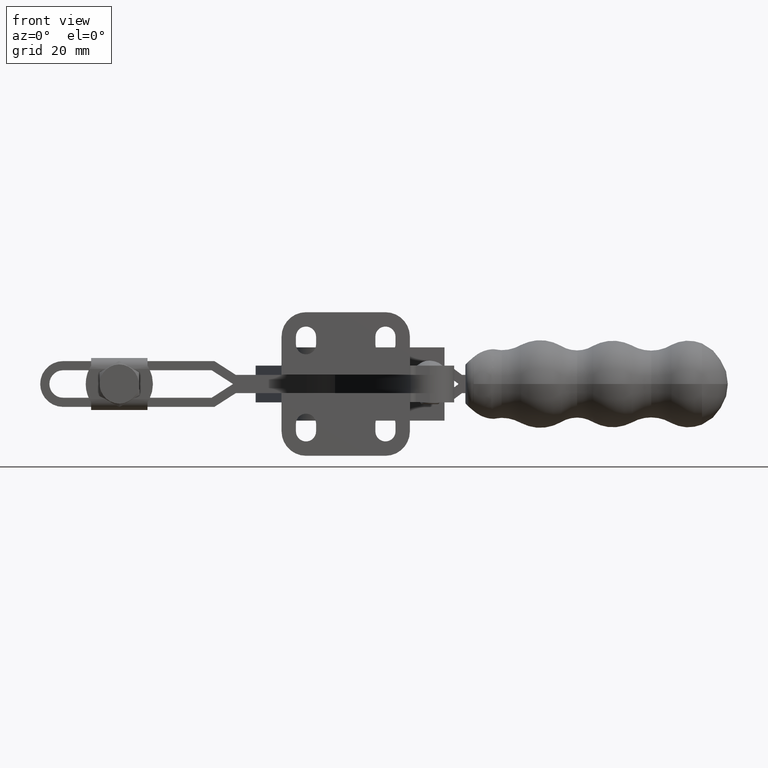
[diagram: clean part render]
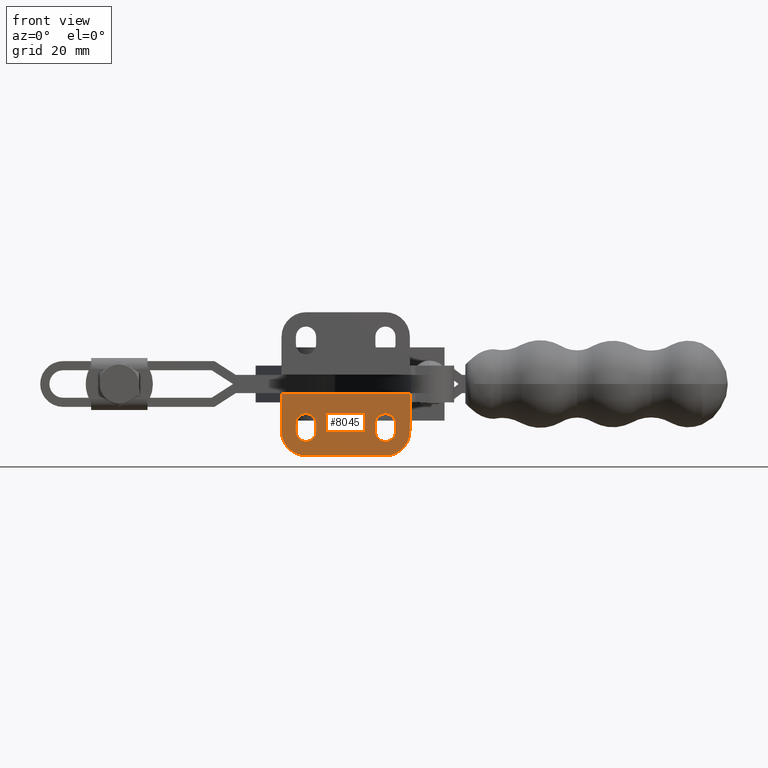
[diagram: same view with one face highlighted and labeled with its STEP entity id]
A machine part, front view. The second image highlights one B-rep face of the part: STEP entity #8045.
In plain terms, the highlighted planar face has unit normal (-0, 1, -0).
Its self-contained STEP definition (entity closure, byte-faithful):
#99 = ORIENTED_EDGE ( 'NONE', *, *, #2182, .F. ) ;
#127 = CARTESIAN_POINT ( 'NONE',  ( -32.15176316209051100, 0.2499999999999925300, -26.50100000000073000 ) ) ;
#229 = CARTESIAN_POINT ( 'NONE',  ( -25.79999999999986200, 0.2499999999999940900, -18.50100000000068300 ) ) ;
#244 = CARTESIAN_POINT ( 'NONE',  ( -51.79999999999988300, 0.2499999999999941400, -18.50100000000084700 ) ) ;
#337 = DIRECTION ( 'NONE',  ( 6.779171240880906000E-016, 1.979755029799889600E-016, 1.000000000000000000 ) ) ;
#344 = ORIENTED_EDGE ( 'NONE', *, *, #11737, .F. ) ;
#394 = FACE_BOUND ( 'NONE', #5056, .T. ) ;
#659 = CIRCLE ( 'NONE', #7319, 8.000000000000007100 ) ;
#681 = VECTOR ( 'NONE', #8382, 1000.000000000000000 ) ;
#716 = CARTESIAN_POINT ( 'NONE',  ( -56.50000000000025600, 0.2499999999999965900, -6.001000000000471100 ) ) ;
#734 = CIRCLE ( 'NONE', #3886, 3.299999999999969600 ) ;
#1039 = AXIS2_PLACEMENT_3D ( 'NONE', #7033, #1291, #7971 ) ;
#1062 = VECTOR ( 'NONE', #5654, 1000.000000000000000 ) ;
#1101 = VERTEX_POINT ( 'NONE', #3378 ) ;
#1103 = DIRECTION ( 'NONE',  ( -1.000000000000000000, -1.306625518940767900E-030, -6.260976779819133100E-015 ) ) ;
#1291 = DIRECTION ( 'NONE',  ( 6.710549181004365900E-032, -1.000000000000000000, 1.979755029799889600E-016 ) ) ;
#1304 = AXIS2_PLACEMENT_3D ( 'NONE', #9973, #4266, #10951 ) ;
#1319 = VERTEX_POINT ( 'NONE', #1909 ) ;
#1454 = CIRCLE ( 'NONE', #3261, 3.299999999999969600 ) ;
#1475 = EDGE_CURVE ( 'NONE', #12215, #4117, #12260, .T. ) ;
#1700 = ORIENTED_EDGE ( 'NONE', *, *, #4121, .T. ) ;
#1757 = EDGE_CURVE ( 'NONE', #5619, #3604, #8626, .T. ) ;
#1887 = CARTESIAN_POINT ( 'NONE',  ( -22.49999999999984400, 0.2499999999999925300, -26.50100000000066900 ) ) ;
#1909 = CARTESIAN_POINT ( 'NONE',  ( -14.50000000000026100, 0.2499999999999965900, -6.001000000000499500 ) ) ;
#2109 = VERTEX_POINT ( 'NONE', #7020 ) ;
#2123 = ORIENTED_EDGE ( 'NONE', *, *, #9016, .T. ) ;
#2182 = EDGE_CURVE ( 'NONE', #12028, #6574, #6685, .T. ) ;
#2223 = CARTESIAN_POINT ( 'NONE',  ( -48.49999999999991500, 0.2499999999999940900, -18.50100000000082200 ) ) ;
#2280 = CARTESIAN_POINT ( 'NONE',  ( -14.50000000000026300, 0.2499999999999960000, -9.001000000000500400 ) ) ;
#2424 = ORIENTED_EDGE ( 'NONE', *, *, #1475, .T. ) ;
#2540 = DIRECTION ( 'NONE',  ( 6.710549181004365900E-032, -1.000000000000000000, 1.979755029799889600E-016 ) ) ;
#2543 = LINE ( 'NONE', #3707, #9862 ) ;
#2768 = CARTESIAN_POINT ( 'NONE',  ( -48.49999999999992200, 0.2499999999999945900, -16.00100000000082500 ) ) ;
#2942 = FACE_BOUND ( 'NONE', #8881, .T. ) ;
#3171 = DIRECTION ( 'NONE',  ( -8.673617379884027600E-016, -1.965116437629975100E-016, -1.000000000000000000 ) ) ;
#3246 = PLANE ( 'NONE',  #12322 ) ;
#3261 = AXIS2_PLACEMENT_3D ( 'NONE', #8114, #2540, #9243 ) ;
#3378 = CARTESIAN_POINT ( 'NONE',  ( -45.19999999999995300, 0.2499999999999945900, -16.00100000000080100 ) ) ;
#3412 = CARTESIAN_POINT ( 'NONE',  ( -19.19999999999986800, 0.2499999999999945900, -16.00100000000064100 ) ) ;
#3589 = LINE ( 'NONE', #127, #3888 ) ;
#3604 = VERTEX_POINT ( 'NONE', #3412 ) ;
#3707 = CARTESIAN_POINT ( 'NONE',  ( -45.20000000000016600, 0.2500000000000029400, 25.98898237602105300 ) ) ;
#3741 = DIRECTION ( 'NONE',  ( 0.0000000000000000000, -1.971276677246389800E-016, -1.000000000000000000 ) ) ;
#3743 = CARTESIAN_POINT ( 'NONE',  ( -56.50000000000025600, 0.2499999999999960000, -9.001000000000470200 ) ) ;
#3886 = AXIS2_PLACEMENT_3D ( 'NONE', #2768, #9460, #3741 ) ;
#3888 = VECTOR ( 'NONE', #1103, 1000.000000000000000 ) ;
#4028 = VECTOR ( 'NONE', #337, 1000.000000000000000 ) ;
#4117 = VERTEX_POINT ( 'NONE', #5132 ) ;
#4121 = EDGE_CURVE ( 'NONE', #4117, #1319, #4331, .T. ) ;
#4266 = DIRECTION ( 'NONE',  ( 6.710549181004365900E-032, -1.000000000000000000, 1.979755029799889600E-016 ) ) ;
#4267 = EDGE_CURVE ( 'NONE', #1101, #12028, #734, .T. ) ;
#4331 = LINE ( 'NONE', #2280, #4028 ) ;
#4666 = DIRECTION ( 'NONE',  ( -4.873197999037687500E-015, 1.979755029799889600E-016, 1.000000000000000000 ) ) ;
#4825 = VERTEX_POINT ( 'NONE', #716 ) ;
#4888 = CARTESIAN_POINT ( 'NONE',  ( -45.19999999999993900, 0.2499999999999940900, -18.50100000000080100 ) ) ;
#5020 = DIRECTION ( 'NONE',  ( 6.710549181004365900E-032, -1.000000000000000000, 1.979755029799889600E-016 ) ) ;
#5025 = CARTESIAN_POINT ( 'NONE',  ( -19.19999999999992100, 0.2499999999999940900, -18.50100000000064100 ) ) ;
#5046 = DIRECTION ( 'NONE',  ( -6.779171240880906000E-016, -1.979755029799889600E-016, -1.000000000000000000 ) ) ;
#5056 = EDGE_LOOP ( 'NONE', ( #10211, #8180, #7371, #11572 ) ) ;
#5066 = VERTEX_POINT ( 'NONE', #229 ) ;
#5132 = CARTESIAN_POINT ( 'NONE',  ( -14.49999999999988500, 0.2499999999999940900, -18.50100000000060900 ) ) ;
#5187 = DIRECTION ( 'NONE',  ( -6.710549181004365900E-032, 1.000000000000000000, -1.979755029799889600E-016 ) ) ;
#5199 = ORIENTED_EDGE ( 'NONE', *, *, #8296, .T. ) ;
#5619 = VERTEX_POINT ( 'NONE', #5025 ) ;
#5654 = DIRECTION ( 'NONE',  ( -1.000000000000000000, 6.710549181004365900E-032, 6.779171240880906000E-016 ) ) ;
#5786 = EDGE_CURVE ( 'NONE', #5066, #5619, #1454, .T. ) ;
#6047 = VERTEX_POINT ( 'NONE', #4888 ) ;
#6161 = EDGE_LOOP ( 'NONE', ( #6182, #5199, #2123, #344, #2424, #1700 ) ) ;
#6182 = ORIENTED_EDGE ( 'NONE', *, *, #11055, .T. ) ;
#6387 = EDGE_CURVE ( 'NONE', #6047, #1101, #2543, .T. ) ;
#6571 = AXIS2_PLACEMENT_3D ( 'NONE', #10722, #5020, #11695 ) ;
#6574 = VERTEX_POINT ( 'NONE', #244 ) ;
#6685 = LINE ( 'NONE', #11887, #10835 ) ;
#6696 = VECTOR ( 'NONE', #5046, 1000.000000000000000 ) ;
#6851 = LINE ( 'NONE', #3743, #9077 ) ;
#6987 = LINE ( 'NONE', #10744, #6696 ) ;
#7020 = CARTESIAN_POINT ( 'NONE',  ( -56.49999999999992200, 0.2499999999999940900, -18.50100000000087200 ) ) ;
#7033 = CARTESIAN_POINT ( 'NONE',  ( -22.49999999999989000, 0.2499999999999940900, -18.50100000000065500 ) ) ;
#7055 = ORIENTED_EDGE ( 'NONE', *, *, #9092, .F. ) ;
#7319 = AXIS2_PLACEMENT_3D ( 'NONE', #2223, #8923, #3171 ) ;
#7371 = ORIENTED_EDGE ( 'NONE', *, *, #8500, .F. ) ;
#7739 = FACE_OUTER_BOUND ( 'NONE', #6161, .T. ) ;
#7971 = DIRECTION ( 'NONE',  ( -8.673617379884027600E-016, -1.965116437629975100E-016, -1.000000000000000000 ) ) ;
#8045 = ADVANCED_FACE ( 'NONE', ( #394, #2942, #7739 ), #3246, .F. ) ;
#8114 = CARTESIAN_POINT ( 'NONE',  ( -22.49999999999989000, 0.2499999999999940900, -18.50100000000065500 ) ) ;
#8180 = ORIENTED_EDGE ( 'NONE', *, *, #5786, .F. ) ;
#8296 = EDGE_CURVE ( 'NONE', #4825, #2109, #6851, .T. ) ;
#8382 = DIRECTION ( 'NONE',  ( 4.508683810909431500E-014, 1.979755029799889600E-016, 1.000000000000000000 ) ) ;
#8453 = ORIENTED_EDGE ( 'NONE', *, *, #6387, .F. ) ;
#8500 = EDGE_CURVE ( 'NONE', #10478, #5066, #6987, .T. ) ;
#8626 = LINE ( 'NONE', #10248, #681 ) ;
#8881 = EDGE_LOOP ( 'NONE', ( #99, #11574, #8453, #7055 ) ) ;
#8923 = DIRECTION ( 'NONE',  ( 6.710549181004365900E-032, -1.000000000000000000, 1.979755029799889600E-016 ) ) ;
#9016 = EDGE_CURVE ( 'NONE', #2109, #10508, #659, .T. ) ;
#9077 = VECTOR ( 'NONE', #12333, 1000.000000000000000 ) ;
#9092 = EDGE_CURVE ( 'NONE', #6574, #6047, #11573, .T. ) ;
#9243 = DIRECTION ( 'NONE',  ( -1.051347561198074700E-015, -1.971276677246389800E-016, -1.000000000000000000 ) ) ;
#9460 = DIRECTION ( 'NONE',  ( 6.710549181004365900E-032, -1.000000000000000000, 1.979755029799889600E-016 ) ) ;
#9571 = CIRCLE ( 'NONE', #6571, 3.300000000000025100 ) ;
#9862 = VECTOR ( 'NONE', #4666, 1000.000000000000000 ) ;
#9914 = CARTESIAN_POINT ( 'NONE',  ( -63.72213595162087800, 0.2499999999999654700, -163.1299056141692200 ) ) ;
#9973 = CARTESIAN_POINT ( 'NONE',  ( -48.49999999999991500, 0.2499999999999940900, -18.50100000000082200 ) ) ;
#10157 = CARTESIAN_POINT ( 'NONE',  ( -51.79999999999989800, 0.2499999999999945900, -16.00100000000084300 ) ) ;
#10211 = ORIENTED_EDGE ( 'NONE', *, *, #1757, .F. ) ;
#10248 = CARTESIAN_POINT ( 'NONE',  ( -19.19999999999791700, 0.2500000000000029400, 25.98898237602053000 ) ) ;
#10352 = CARTESIAN_POINT ( 'NONE',  ( -52.50000000000059000, 0.2499999999999996400, -6.001000000000473700 ) ) ;
#10478 = VERTEX_POINT ( 'NONE', #12285 ) ;
#10508 = VERTEX_POINT ( 'NONE', #11337 ) ;
#10722 = CARTESIAN_POINT ( 'NONE',  ( -22.49999999999989000, 0.2499999999999945900, -16.00100000000065500 ) ) ;
#10744 = CARTESIAN_POINT ( 'NONE',  ( -25.79999999999983400, 0.2500000000000029400, 25.98898237602111300 ) ) ;
#10835 = VECTOR ( 'NONE', #10919, 1000.000000000000000 ) ;
#10919 = DIRECTION ( 'NONE',  ( 4.873197999037687500E-015, -1.979755029799889600E-016, -1.000000000000000000 ) ) ;
#10951 = DIRECTION ( 'NONE',  ( 0.0000000000000000000, -1.971276677246389800E-016, -1.000000000000000000 ) ) ;
#11055 = EDGE_CURVE ( 'NONE', #1319, #4825, #11234, .T. ) ;
#11216 = EDGE_CURVE ( 'NONE', #3604, #10478, #9571, .T. ) ;
#11234 = LINE ( 'NONE', #10352, #1062 ) ;
#11337 = CARTESIAN_POINT ( 'NONE',  ( -48.49999999999986500, 0.2499999999999925300, -26.50100000000083300 ) ) ;
#11572 = ORIENTED_EDGE ( 'NONE', *, *, #11216, .F. ) ;
#11573 = CIRCLE ( 'NONE', #1304, 3.299999999999969600 ) ;
#11574 = ORIENTED_EDGE ( 'NONE', *, *, #4267, .F. ) ;
#11695 = DIRECTION ( 'NONE',  ( -1.051347561198056900E-015, -1.971276677246356700E-016, -1.000000000000000000 ) ) ;
#11737 = EDGE_CURVE ( 'NONE', #12215, #10508, #3589, .T. ) ;
#11847 = DIRECTION ( 'NONE',  ( -6.779171240880906000E-016, -1.979755029799889600E-016, -1.000000000000000000 ) ) ;
#11887 = CARTESIAN_POINT ( 'NONE',  ( -51.80000000000010400, 0.2500000000000029400, 25.98898237602101700 ) ) ;
#12028 = VERTEX_POINT ( 'NONE', #10157 ) ;
#12215 = VERTEX_POINT ( 'NONE', #1887 ) ;
#12260 = CIRCLE ( 'NONE', #1039, 8.000000000000007100 ) ;
#12285 = CARTESIAN_POINT ( 'NONE',  ( -25.79999999999986200, 0.2499999999999945900, -16.00100000000068000 ) ) ;
#12322 = AXIS2_PLACEMENT_3D ( 'NONE', #9914, #5187, #11847 ) ;
#12333 = DIRECTION ( 'NONE',  ( -6.779171240880906000E-016, -1.979755029799889600E-016, -1.000000000000000000 ) ) ;